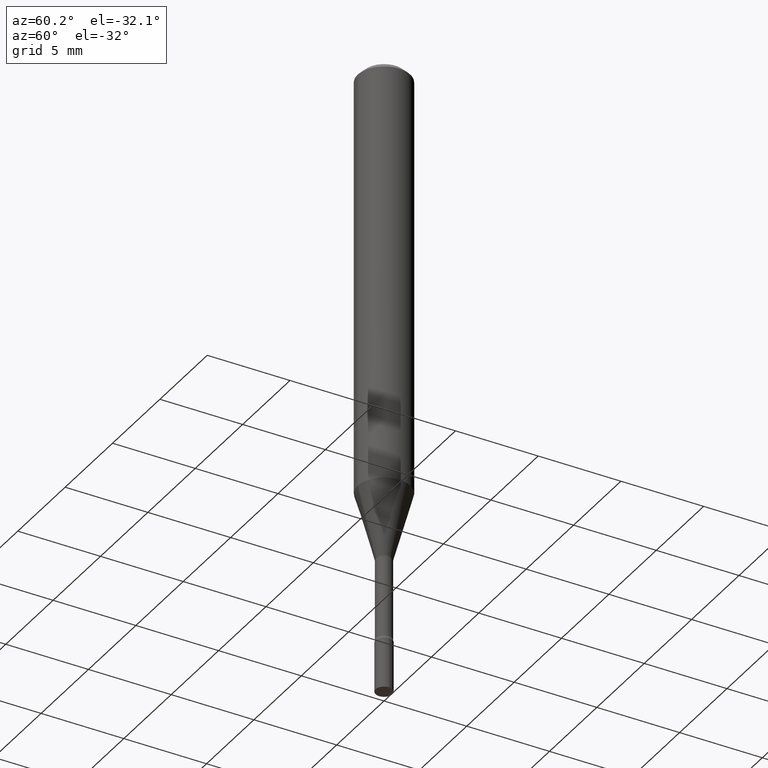
[diagram: clean part render]
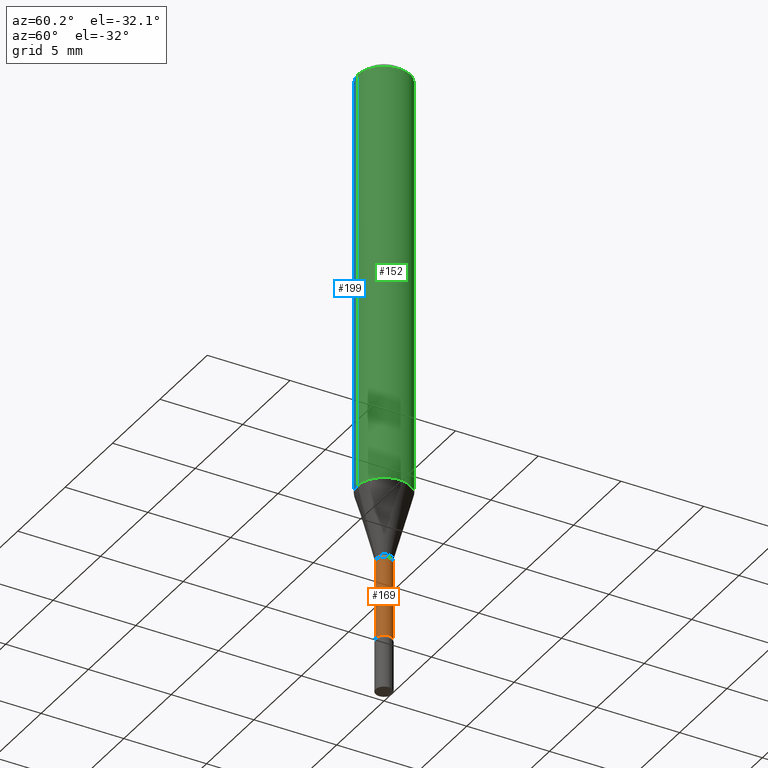
[diagram: same view with three faces highlighted in distinct colors, each labeled with its STEP entity id]
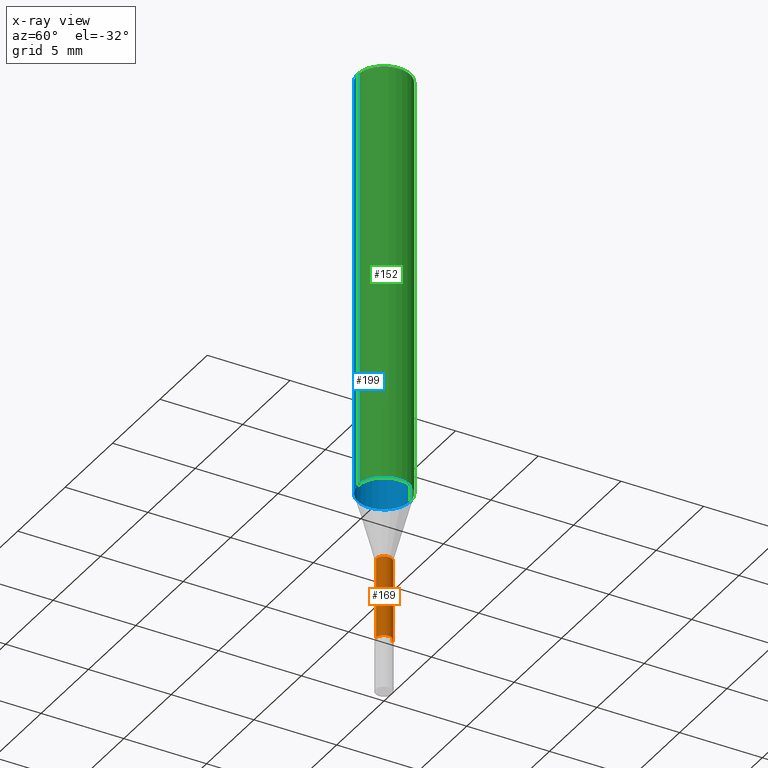
[diagram: x-ray of the same camera — body ghosted, the three highlighted faces saturated]
A machine part, auxiliary view with three faces highlighted in distinct colors.
The next image is the same camera in x-ray (body ghosted, the three faces saturated) — at least one of them is partly hidden behind the body in this view.
Their STEP definitions:

[orange] entity #169 — the highlighted cylindrical surface (edge-blend (fillet) strip) has radius 0.4775 mm, axis along (-0, 0, 1).
#13 = DIRECTION ( 'NONE',  ( -2.445495417718738301E-29, 3.491443229612393590E-15, 1.000000000000000000 ) ) ;
#29 = EDGE_CURVE ( 'NONE', #260, #489, #284, .T. ) ;
#35 = CARTESIAN_POINT ( 'NONE',  ( 2.890513926601829062E-29, -4.126797869263070906E-15, -1.181974787463810905 ) ) ;
#46 = VERTEX_POINT ( 'NONE', #486 ) ;
#60 = ORIENTED_EDGE ( 'NONE', *, *, #268, .F. ) ;
#109 = ORIENTED_EDGE ( 'NONE', *, *, #351, .F. ) ;
#136 = CYLINDRICAL_SURFACE ( 'NONE', #343, 0.01880000000000000421 ) ;
#143 = DIRECTION ( 'NONE',  ( -2.445495417718738301E-29, 3.491443229612393590E-15, 1.000000000000000000 ) ) ;
#155 = ORIENTED_EDGE ( 'NONE', *, *, #29, .T. ) ;
#169 = ADVANCED_FACE ( 'NONE', ( #459 ), #136, .T. ) ;
#172 = VECTOR ( 'NONE', #143, 39.37007874015748143 ) ;
#186 = DIRECTION ( 'NONE',  ( -2.445495417718738301E-29, 3.491443229612393590E-15, 1.000000000000000000 ) ) ;
#205 = CIRCLE ( 'NONE', #505, 0.01880000000000000768 ) ;
#211 = CARTESIAN_POINT ( 'NONE',  ( -1.312796983404682503E-16, -0.01880000000000480592, -1.374121224617320447 ) ) ;
#213 = EDGE_LOOP ( 'NONE', ( #357, #155, #109, #60 ) ) ;
#224 = DIRECTION ( 'NONE',  ( -2.445495417718738301E-29, 3.491443229612393590E-15, 1.000000000000000000 ) ) ;
#231 = CARTESIAN_POINT ( 'NONE',  ( -1.312796983405018262E-16, -0.01880000000000000421, 6.563913271671300931E-17 ) ) ;
#260 = VERTEX_POINT ( 'NONE', #424 ) ;
#264 = CARTESIAN_POINT ( 'NONE',  ( 1.335820343229324654E-16, 0.01879999999999587210, -1.181974787463810905 ) ) ;
#268 = EDGE_CURVE ( 'NONE', #300, #46, #340, .T. ) ;
#282 = EDGE_CURVE ( 'NONE', #300, #260, #205, .T. ) ;
#284 = LINE ( 'NONE', #433, #172 ) ;
#293 = CIRCLE ( 'NONE', #462, 0.01880000000000000074 ) ;
#300 = VERTEX_POINT ( 'NONE', #211 ) ;
#340 = LINE ( 'NONE', #231, #428 ) ;
#343 = AXIS2_PLACEMENT_3D ( 'NONE', #346, #186, #422 ) ;
#346 = CARTESIAN_POINT ( 'NONE',  ( 0.000000000000000000, 0.000000000000000000, 0.000000000000000000 ) ) ;
#351 = EDGE_CURVE ( 'NONE', #46, #489, #293, .T. ) ;
#357 = ORIENTED_EDGE ( 'NONE', *, *, #282, .T. ) ;
#388 = CARTESIAN_POINT ( 'NONE',  ( 3.360407158191717827E-29, -4.797666246356834055E-15, -1.374121224617320447 ) ) ;
#422 = DIRECTION ( 'NONE',  ( -6.982962677686265922E-15, -1.000000000000000000, 3.491443229612393195E-15 ) ) ;
#424 = CARTESIAN_POINT ( 'NONE',  ( 1.378452907374931886E-16, 0.01879999999999520943, -1.374121224617320447 ) ) ;
#428 = VECTOR ( 'NONE', #13, 39.37007874015748143 ) ;
#433 = CARTESIAN_POINT ( 'NONE',  ( 1.335820343228988402E-16, 0.01880000000000000421, -6.563913271671300931E-17 ) ) ;
#459 = FACE_OUTER_BOUND ( 'NONE', #213, .T. ) ;
#462 = AXIS2_PLACEMENT_3D ( 'NONE', #35, #517, #481 ) ;
#481 = DIRECTION ( 'NONE',  ( -6.982962677686265922E-15, -1.000000000000000000, 0.000000000000000000 ) ) ;
#486 = CARTESIAN_POINT ( 'NONE',  ( -1.312796983404729095E-16, -0.01880000000000412938, -1.181974787463810905 ) ) ;
#489 = VERTEX_POINT ( 'NONE', #264 ) ;
#498 = DIRECTION ( 'NONE',  ( -6.982962677686265922E-15, -1.000000000000000000, 0.000000000000000000 ) ) ;
#505 = AXIS2_PLACEMENT_3D ( 'NONE', #388, #224, #498 ) ;
#517 = DIRECTION ( 'NONE',  ( -2.445495417718738301E-29, 3.491443229612393590E-15, 1.000000000000000000 ) ) ;

[blue] entity #199 — the highlighted cylindrical surface (edge-blend (fillet) strip) has radius 1.5875 mm, axis along (-0, 0, 1).
#21 = DIRECTION ( 'NONE',  ( -2.445495417718738301E-29, 3.491443229612393590E-15, 1.000000000000000000 ) ) ;
#39 = AXIS2_PLACEMENT_3D ( 'NONE', #128, #449, #408 ) ;
#53 = VERTEX_POINT ( 'NONE', #73 ) ;
#57 = VERTEX_POINT ( 'NONE', #83 ) ;
#62 = FACE_OUTER_BOUND ( 'NONE', #506, .T. ) ;
#67 = DIRECTION ( 'NONE',  ( -6.982962677686265922E-15, -1.000000000000000000, 3.491443229612393195E-15 ) ) ;
#73 = CARTESIAN_POINT ( 'NONE',  ( -4.364351673553668696E-16, -0.06250000000000356659, -1.016909379709240335 ) ) ;
#77 = ORIENTED_EDGE ( 'NONE', *, *, #294, .T. ) ;
#81 = CARTESIAN_POINT ( 'NONE',  ( 4.440892098500625669E-16, 0.06250000000000000000, -2.182152018507745747E-16 ) ) ;
#83 = CARTESIAN_POINT ( 'NONE',  ( 4.440892098500875639E-16, 0.06249999999999995143, -0.01500000000000024751 ) ) ;
#91 = LINE ( 'NONE', #383, #488 ) ;
#95 = EDGE_CURVE ( 'NONE', #466, #53, #374, .T. ) ;
#103 = ORIENTED_EDGE ( 'NONE', *, *, #365, .F. ) ;
#128 = CARTESIAN_POINT ( 'NONE',  ( 2.486847228314152234E-29, -3.550481368915166973E-15, -1.016909379709240557 ) ) ;
#132 = CIRCLE ( 'NONE', #159, 0.06250000000000000000 ) ;
#159 = AXIS2_PLACEMENT_3D ( 'NONE', #320, #238, #319 ) ;
#168 = VERTEX_POINT ( 'NONE', #414 ) ;
#185 = VECTOR ( 'NONE', #287, 39.37007874015748143 ) ;
#199 = ADVANCED_FACE ( 'NONE', ( #62 ), #378, .T. ) ;
#238 = DIRECTION ( 'NONE',  ( -2.445495417718738301E-29, 3.491443229612393590E-15, 1.000000000000000000 ) ) ;
#263 = CARTESIAN_POINT ( 'NONE',  ( 0.000000000000000000, 0.000000000000000000, 0.000000000000000000 ) ) ;
#287 = DIRECTION ( 'NONE',  ( -2.445495417718738301E-29, 3.491443229612393590E-15, 1.000000000000000000 ) ) ;
#294 = EDGE_CURVE ( 'NONE', #53, #168, #91, .T. ) ;
#319 = DIRECTION ( 'NONE',  ( -6.982962677686265922E-15, -1.000000000000000000, 3.483106191921935554E-15 ) ) ;
#320 = CARTESIAN_POINT ( 'NONE',  ( 3.668243126578114756E-31, -5.237164844418600911E-17, -0.01500000000000003067 ) ) ;
#321 = EDGE_CURVE ( 'NONE', #57, #168, #132, .T. ) ;
#365 = EDGE_CURVE ( 'NONE', #466, #57, #401, .T. ) ;
#374 = CIRCLE ( 'NONE', #39, 0.06250000000000000000 ) ;
#378 = CYLINDRICAL_SURFACE ( 'NONE', #442, 0.06250000000000000000 ) ;
#383 = CARTESIAN_POINT ( 'NONE',  ( -4.364351673553916201E-16, -0.06250000000000000000, 2.182152018507745747E-16 ) ) ;
#393 = CARTESIAN_POINT ( 'NONE',  ( 4.440892098500872681E-16, 0.06249999999999643341, -1.016909379709240779 ) ) ;
#401 = LINE ( 'NONE', #81, #185 ) ;
#408 = DIRECTION ( 'NONE',  ( -6.982962677686265922E-15, -1.000000000000000000, 4.370956789862821150E-15 ) ) ;
#414 = CARTESIAN_POINT ( 'NONE',  ( -4.364351673553912750E-16, -0.06250000000000005551, -0.01499999999999981209 ) ) ;
#416 = ORIENTED_EDGE ( 'NONE', *, *, #95, .T. ) ;
#418 = DIRECTION ( 'NONE',  ( -2.445495417718738301E-29, 3.491443229612393590E-15, 1.000000000000000000 ) ) ;
#420 = ORIENTED_EDGE ( 'NONE', *, *, #321, .F. ) ;
#442 = AXIS2_PLACEMENT_3D ( 'NONE', #263, #418, #67 ) ;
#449 = DIRECTION ( 'NONE',  ( -2.445495417718738301E-29, 3.491443229612393590E-15, 1.000000000000000000 ) ) ;
#466 = VERTEX_POINT ( 'NONE', #393 ) ;
#488 = VECTOR ( 'NONE', #21, 39.37007874015748143 ) ;
#506 = EDGE_LOOP ( 'NONE', ( #103, #416, #77, #420 ) ) ;

[green] entity #152 — the highlighted cylindrical surface (edge-blend (fillet) strip) has radius 1.5875 mm, axis along (-0, 0, 1).
#7 = DIRECTION ( 'NONE',  ( -6.982962677686265922E-15, -1.000000000000000000, 3.483106191921935554E-15 ) ) ;
#21 = DIRECTION ( 'NONE',  ( -2.445495417718738301E-29, 3.491443229612393590E-15, 1.000000000000000000 ) ) ;
#48 = CIRCLE ( 'NONE', #88, 0.06250000000000000000 ) ;
#49 = DIRECTION ( 'NONE',  ( -2.445495417718738301E-29, 3.491443229612393590E-15, 1.000000000000000000 ) ) ;
#53 = VERTEX_POINT ( 'NONE', #73 ) ;
#57 = VERTEX_POINT ( 'NONE', #83 ) ;
#73 = CARTESIAN_POINT ( 'NONE',  ( -4.364351673553668696E-16, -0.06250000000000356659, -1.016909379709240335 ) ) ;
#81 = CARTESIAN_POINT ( 'NONE',  ( 4.440892098500625669E-16, 0.06250000000000000000, -2.182152018507745747E-16 ) ) ;
#83 = CARTESIAN_POINT ( 'NONE',  ( 4.440892098500875639E-16, 0.06249999999999995143, -0.01500000000000024751 ) ) ;
#87 = EDGE_CURVE ( 'NONE', #53, #466, #48, .T. ) ;
#88 = AXIS2_PLACEMENT_3D ( 'NONE', #370, #49, #134 ) ;
#89 = CYLINDRICAL_SURFACE ( 'NONE', #214, 0.06250000000000000000 ) ;
#90 = EDGE_CURVE ( 'NONE', #168, #57, #253, .T. ) ;
#91 = LINE ( 'NONE', #383, #488 ) ;
#123 = CARTESIAN_POINT ( 'NONE',  ( 0.000000000000000000, 0.000000000000000000, 0.000000000000000000 ) ) ;
#134 = DIRECTION ( 'NONE',  ( -6.982962677686265922E-15, -1.000000000000000000, 4.370956789862821150E-15 ) ) ;
#147 = ORIENTED_EDGE ( 'NONE', *, *, #294, .F. ) ;
#152 = ADVANCED_FACE ( 'NONE', ( #454 ), #89, .T. ) ;
#168 = VERTEX_POINT ( 'NONE', #414 ) ;
#185 = VECTOR ( 'NONE', #287, 39.37007874015748143 ) ;
#214 = AXIS2_PLACEMENT_3D ( 'NONE', #123, #255, #411 ) ;
#253 = CIRCLE ( 'NONE', #304, 0.06250000000000000000 ) ;
#255 = DIRECTION ( 'NONE',  ( -2.445495417718738301E-29, 3.491443229612393590E-15, 1.000000000000000000 ) ) ;
#266 = ORIENTED_EDGE ( 'NONE', *, *, #87, .T. ) ;
#287 = DIRECTION ( 'NONE',  ( -2.445495417718738301E-29, 3.491443229612393590E-15, 1.000000000000000000 ) ) ;
#294 = EDGE_CURVE ( 'NONE', #53, #168, #91, .T. ) ;
#304 = AXIS2_PLACEMENT_3D ( 'NONE', #456, #372, #7 ) ;
#365 = EDGE_CURVE ( 'NONE', #466, #57, #401, .T. ) ;
#370 = CARTESIAN_POINT ( 'NONE',  ( 2.486847228314152234E-29, -3.550481368915166973E-15, -1.016909379709240557 ) ) ;
#372 = DIRECTION ( 'NONE',  ( -2.445495417718738301E-29, 3.491443229612393590E-15, 1.000000000000000000 ) ) ;
#383 = CARTESIAN_POINT ( 'NONE',  ( -4.364351673553916201E-16, -0.06250000000000000000, 2.182152018507745747E-16 ) ) ;
#393 = CARTESIAN_POINT ( 'NONE',  ( 4.440892098500872681E-16, 0.06249999999999643341, -1.016909379709240779 ) ) ;
#401 = LINE ( 'NONE', #81, #185 ) ;
#411 = DIRECTION ( 'NONE',  ( -6.982962677686265922E-15, -1.000000000000000000, 3.491443229612393195E-15 ) ) ;
#413 = ORIENTED_EDGE ( 'NONE', *, *, #90, .F. ) ;
#414 = CARTESIAN_POINT ( 'NONE',  ( -4.364351673553912750E-16, -0.06250000000000005551, -0.01499999999999981209 ) ) ;
#426 = ORIENTED_EDGE ( 'NONE', *, *, #365, .T. ) ;
#454 = FACE_OUTER_BOUND ( 'NONE', #509, .T. ) ;
#456 = CARTESIAN_POINT ( 'NONE',  ( 3.668243126578114756E-31, -5.237164844418600911E-17, -0.01500000000000003067 ) ) ;
#466 = VERTEX_POINT ( 'NONE', #393 ) ;
#488 = VECTOR ( 'NONE', #21, 39.37007874015748143 ) ;
#509 = EDGE_LOOP ( 'NONE', ( #266, #426, #413, #147 ) ) ;